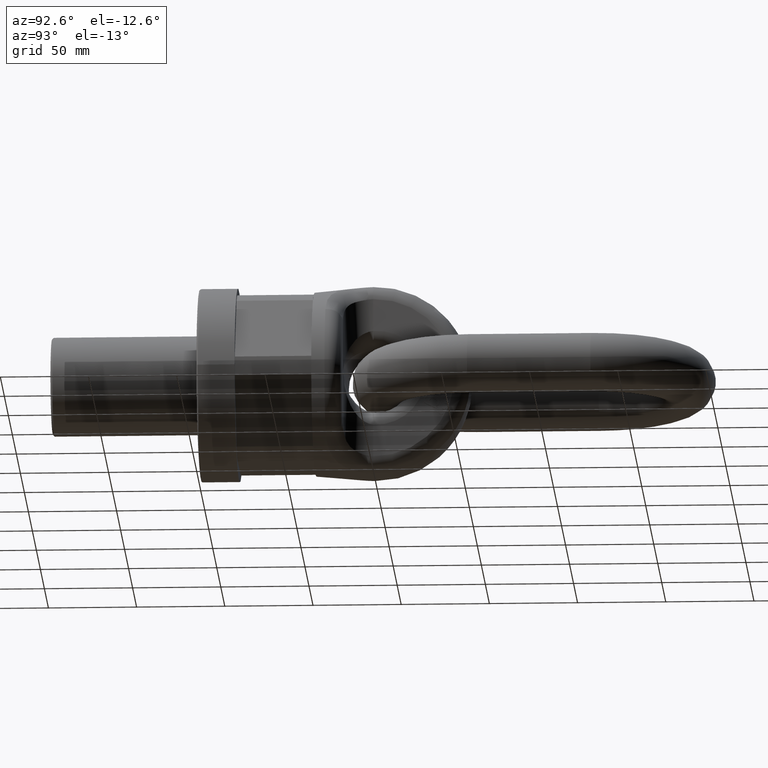
[diagram: clean part render]
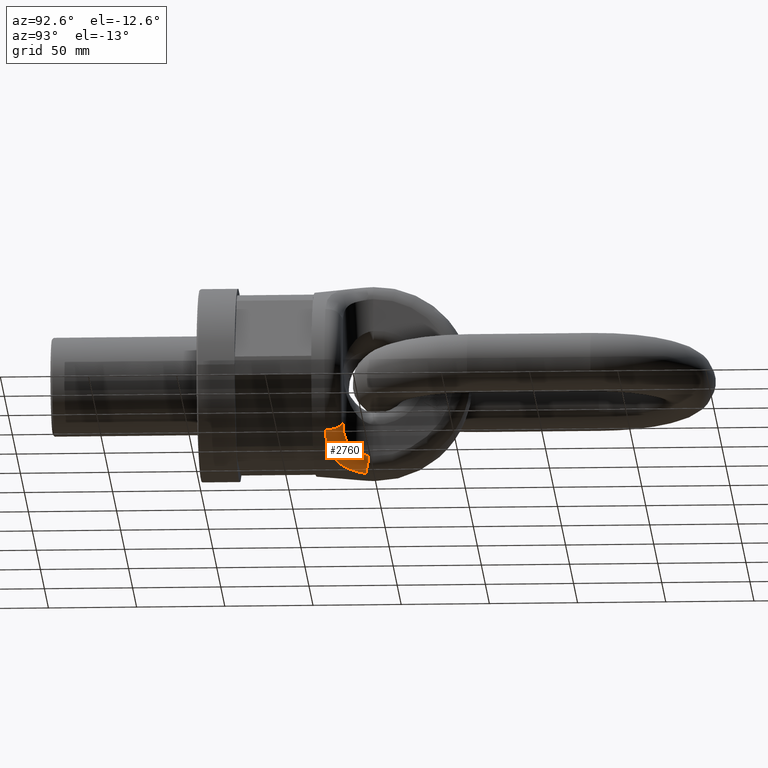
[diagram: same view with one face highlighted and labeled with its STEP entity id]
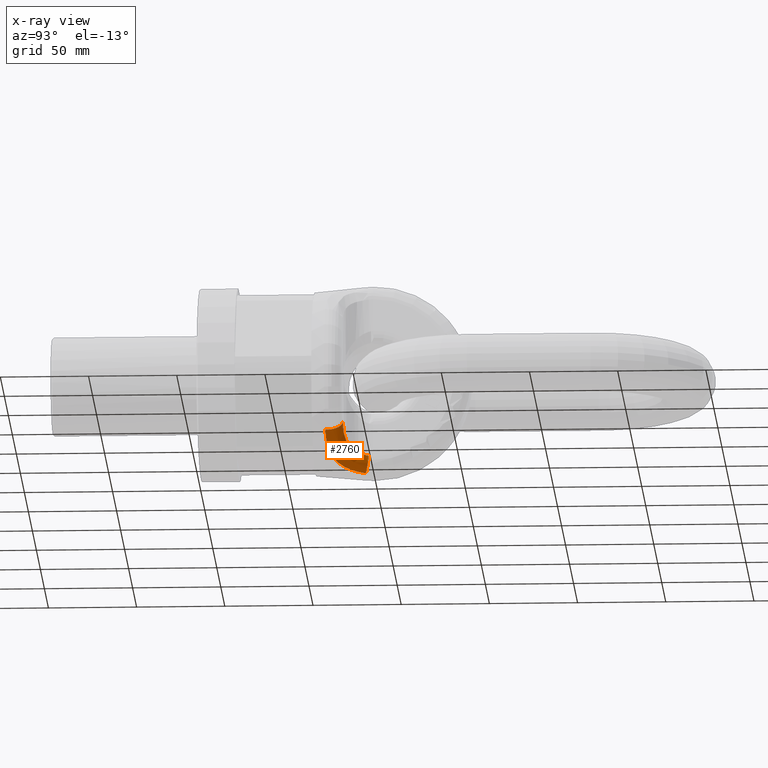
[diagram: x-ray of the same camera — body ghosted, the highlighted face saturated]
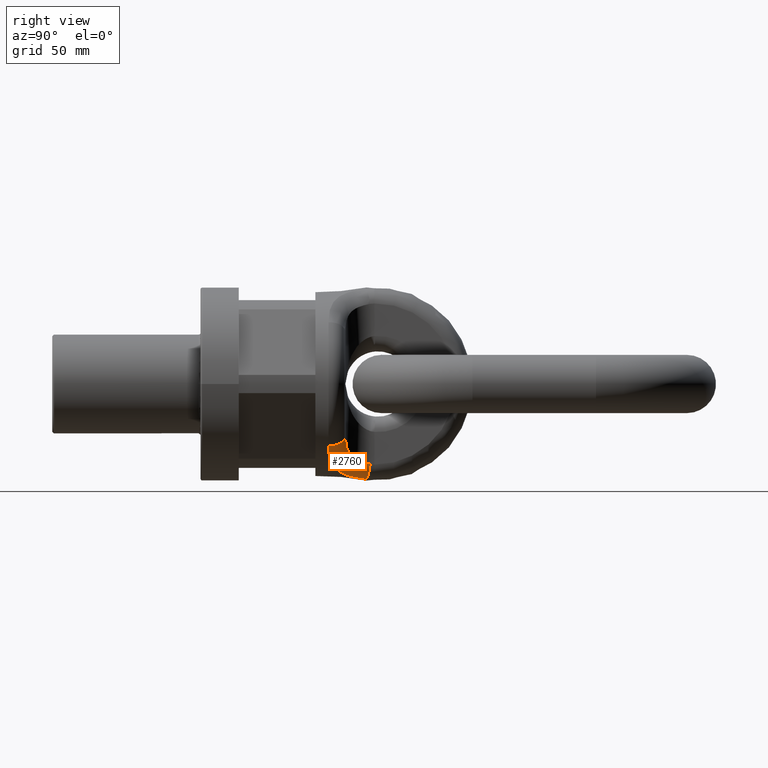
[diagram: same view with one face highlighted and labeled with its STEP entity id]
A machine part, auxiliary view. The second image highlights one B-rep face of the part: STEP entity #2760.
The next image is the same camera in x-ray: the body ghosted, the highlighted face saturated — about 0% of this face is hidden behind the body in this view.
A second angle (right view) of the same face is appended — the face is thin or edge-on in the first view.
In plain terms, the highlighted face is a freeform B-spline surface patch.
Its self-contained STEP definition (entity closure, byte-faithful):
#203=(
BOUNDED_SURFACE()
B_SPLINE_SURFACE(3,2,((#8118,#8119,#8120),(#8121,#8122,#8123),(#8124,#8125,
#8126),(#8127,#8128,#8129),(#8130,#8131,#8132),(#8133,#8134,#8135),(#8136,
#8137,#8138),(#8139,#8140,#8141),(#8142,#8143,#8144),(#8145,#8146,#8147),
(#8148,#8149,#8150),(#8151,#8152,#8153)),.UNSPECIFIED.,.F.,.F.,.F.)
B_SPLINE_SURFACE_WITH_KNOTS((4,2,2,2,2,4),(3,3),(0.,0.25,0.5,0.625,0.75,
1.),(0.,1.),.UNSPECIFIED.)
GEOMETRIC_REPRESENTATION_ITEM()
RATIONAL_B_SPLINE_SURFACE(((1.,0.673958891528948,1.),(1.,0.698569173244514,
1.),(1.,0.719523575231132,1.),(1.,0.750598148131528,1.),(1.,0.759808848132694,
1.),(1.,0.765571649220213,1.),(1.,0.76618857962545,1.),(1.,0.765922049155432,
1.),(1.,0.76502203419166,1.),(1.,0.761986007813476,1.),(1.,0.759638879418338,
1.),(1.,0.76096027957185,1.)))
REPRESENTATION_ITEM('')
SURFACE()
);
#347=B_SPLINE_CURVE_WITH_KNOTS('',3,(#7002,#7003,#7004,#7005,#7006,#7007,
#7008,#7009,#7010,#7011),.UNSPECIFIED.,.F.,.F.,(4,2,2,2,4),(0.,0.25,0.5,
0.75,1.),.UNSPECIFIED.);
#350=B_SPLINE_CURVE_WITH_KNOTS('',3,(#7036,#7037,#7038,#7039,#7040,#7041,
#7042,#7043,#7044,#7045),.UNSPECIFIED.,.F.,.F.,(4,2,2,2,4),(0.,0.25,0.5,
0.75,1.),.UNSPECIFIED.);
#1904=FACE_OUTER_BOUND('',#3204,.T.);
#2760=ADVANCED_FACE('',(#1904),#203,.T.);
#3204=EDGE_LOOP('',(#3956,#3957,#3958,#3959));
#3956=ORIENTED_EDGE('',*,*,#5253,.F.);
#3957=ORIENTED_EDGE('',*,*,#5056,.F.);
#3958=ORIENTED_EDGE('',*,*,#5254,.F.);
#3959=ORIENTED_EDGE('',*,*,#5061,.F.);
#4643=VERTEX_POINT('',#7001);
#4644=VERTEX_POINT('',#7012);
#4648=VERTEX_POINT('',#7035);
#4649=VERTEX_POINT('',#7046);
#5056=EDGE_CURVE('',#4643,#4644,#347,.T.);
#5061=EDGE_CURVE('',#4648,#4649,#350,.T.);
#5253=EDGE_CURVE('',#4644,#4648,#5566,.T.);
#5254=EDGE_CURVE('',#4649,#4643,#5567,.T.);
#5566=CIRCLE('',#5710,8.75);
#5567=CIRCLE('',#5711,8.75);
#5710=AXIS2_PLACEMENT_3D('',#8116,#6217,#6218);
#5711=AXIS2_PLACEMENT_3D('',#8117,#6219,#6220);
#6217=DIRECTION('',(-0.146876638936786,0.98212669786944,-0.117704724912391));
#6218=DIRECTION('',(-0.989001605901432,-0.147904778571855,0.));
#6219=DIRECTION('',(0.66293010145488,2.28856183412548E-16,0.748681294400376));
#6220=DIRECTION('',(0.748681294400376,0.,-0.66293010145488));
#7001=CARTESIAN_POINT('',(33.,82.,-29.2203017647612));
#7002=CARTESIAN_POINT('',(33.,82.,-29.2203017647612));
#7003=CARTESIAN_POINT('',(31.7604835005405,82.,-31.3624967265596));
#7004=CARTESIAN_POINT('',(30.3679904712917,82.1319592399398,-33.3802047079644));
#7005=CARTESIAN_POINT('',(27.2545975093216,82.9490970454346,-37.1182415490326));
#7006=CARTESIAN_POINT('',(25.551709899972,83.6358633814773,-38.7974517914109));
#7007=CARTESIAN_POINT('',(22.1528898331945,85.9000085770875,-41.6080975378234));
#7008=CARTESIAN_POINT('',(20.5171624757036,87.460123196881,-42.6905270538874));
#7009=CARTESIAN_POINT('',(17.9444334047456,91.3564695715712,-44.3382807711403));
#7010=CARTESIAN_POINT('',(17.0441367392335,93.6345344044535,-44.9059501713278));
#7011=CARTESIAN_POINT('',(16.6814735026264,96.0595711535644,-45.3507065058065));
#7012=CARTESIAN_POINT('',(16.6814735026264,96.0595711535644,-45.3507065058064));
#7035=CARTESIAN_POINT('',(9.54646529306783,93.9642646218021,-53.9305698987969));
#7036=CARTESIAN_POINT('',(9.54646529306782,93.9642646218019,-53.9305698987969));
#7037=CARTESIAN_POINT('',(10.2215715076205,90.2318136566987,-53.4625512320911));
#7038=CARTESIAN_POINT('',(11.8752128018626,86.7947747479395,-52.8461870570574));
#7039=CARTESIAN_POINT('',(16.4114244867927,81.0034264033429,-51.05941132954));
#7040=CARTESIAN_POINT('',(19.2284416047267,78.7012720395915,-49.8957504268851));
#7041=CARTESIAN_POINT('',(25.2375917917682,75.2248761672735,-46.7800140701433));
#7042=CARTESIAN_POINT('',(28.3252540747575,74.0985357389962,-44.8822813849155));
#7043=CARTESIAN_POINT('',(34.2474254838459,72.7037388002105,-40.3768538930967));
#7044=CARTESIAN_POINT('',(37.0068475720059,72.4488602807413,-37.8386994931719));
#7045=CARTESIAN_POINT('',(39.52344512261,72.4488602807412,-34.9965755535044));
#7046=CARTESIAN_POINT('',(39.52344512261,72.4488602807413,-34.9965755535044));
#8116=CARTESIAN_POINT('',(8.02770945098885,94.7654043410607,-45.3507065058064));
#8117=CARTESIAN_POINT('',(33.,73.25,-29.2203017647612));
#8118=CARTESIAN_POINT('',(39.52344512261,72.4488602807413,-34.9965755535044));
#8119=CARTESIAN_POINT('',(40.1809218940649,82.,-35.5787473615417));
#8120=CARTESIAN_POINT('',(33.,82.,-29.2203017647612));
#8121=CARTESIAN_POINT('',(36.8357250058638,72.4488602795035,-38.0319570687827));
#8122=CARTESIAN_POINT('',(37.8667393676956,81.3846526123366,-38.1069279859977));
#8123=CARTESIAN_POINT('',(31.5335865025854,82.,-31.7546315671906));
#8124=CARTESIAN_POINT('',(33.8767308334945,72.7398915002448,-40.7131156320003));
#8125=CARTESIAN_POINT('',(35.3237141184162,81.0942786041635,-40.4453838259382));
#8126=CARTESIAN_POINT('',(29.9214328891899,82.1901788173364,-33.9961915606906));
#8127=CARTESIAN_POINT('',(27.5515812665772,74.3420492412677,-45.4057693023343));
#8128=CARTESIAN_POINT('',(30.1696825065002,81.5905629079623,-44.5286456339623));
#8129=CARTESIAN_POINT('',(26.4782866521512,83.237133379515,-37.9355380268633));
#8130=CARTESIAN_POINT('',(24.3091549259432,75.6403937118927,-47.3098458736287));
#8131=CARTESIAN_POINT('',(27.5945046920377,82.3555841997998,-46.2641636628557));
#8132=CARTESIAN_POINT('',(24.7145052890273,84.085556499706,-39.5436869095954));
#8133=CARTESIAN_POINT('',(19.8070868726271,78.4600170945586,-49.5581326060344));
#8134=CARTESIAN_POINT('',(24.1918675764744,84.2621496427653,-48.3675201727626));
#8135=CARTESIAN_POINT('',(22.2649734204574,85.9280826703444,-41.4630096808796));
#8136=CARTESIAN_POINT('',(18.3996525789377,79.5223977028936,-50.1934321921115));
#8137=CARTESIAN_POINT('',(23.1493124174275,85.0062695119726,-48.9800278242004));
#8138=CARTESIAN_POINT('',(21.4991045185295,86.6223115829247,-42.0095521264806));
#8139=CARTESIAN_POINT('',(15.8065021477612,81.8972136743457,-51.297836458786));
#8140=CARTESIAN_POINT('',(21.263477409666,86.6829260876399,-50.0677177078878));
#8141=CARTESIAN_POINT('',(20.0877056530857,88.1741715244016,-42.9679248442612));
#8142=CARTESIAN_POINT('',(14.6106193497709,83.226543278727,-51.7705058426632));
#8143=CARTESIAN_POINT('',(20.409452565522,87.6302225687981,-50.5490446977922));
#8144=CARTESIAN_POINT('',(19.4366353401249,89.0428423551368,-43.3829887824611));
#8145=CARTESIAN_POINT('',(11.549409391225,87.4442245842754,-52.9686852341421));
#8146=CARTESIAN_POINT('',(18.2416377014211,90.6252878662299,-51.7871971103506));
#8147=CARTESIAN_POINT('',(17.7698749893227,91.7989509309876,-44.4481673105292));
#8148=CARTESIAN_POINT('',(10.1529974142049,90.610938359576,-53.5100903529762));
#8149=CARTESIAN_POINT('',(17.2819044484048,92.8420460426856,-52.3649998466358));
#8150=CARTESIAN_POINT('',(17.0092297783243,93.8679483666638,-44.9487587346356));
#8151=CARTESIAN_POINT('',(9.5464652930678,93.9642646218021,-53.9305698987969));
#8152=CARTESIAN_POINT('',(16.8113504233417,95.1911172442503,-52.7591402491911));
#8153=CARTESIAN_POINT('',(16.6814735026264,96.0595711535645,-45.3507065058065));